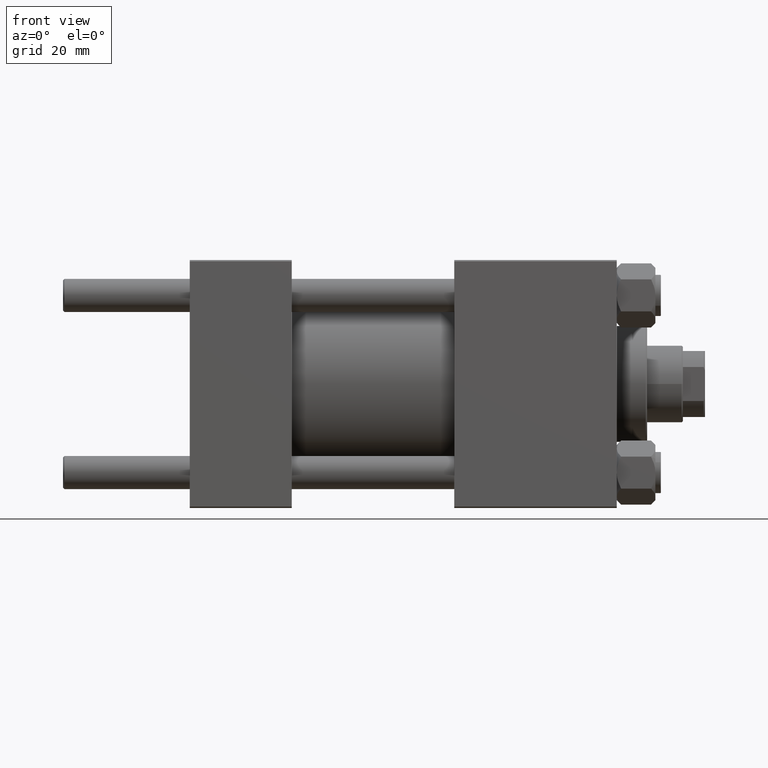
[diagram: clean part render]
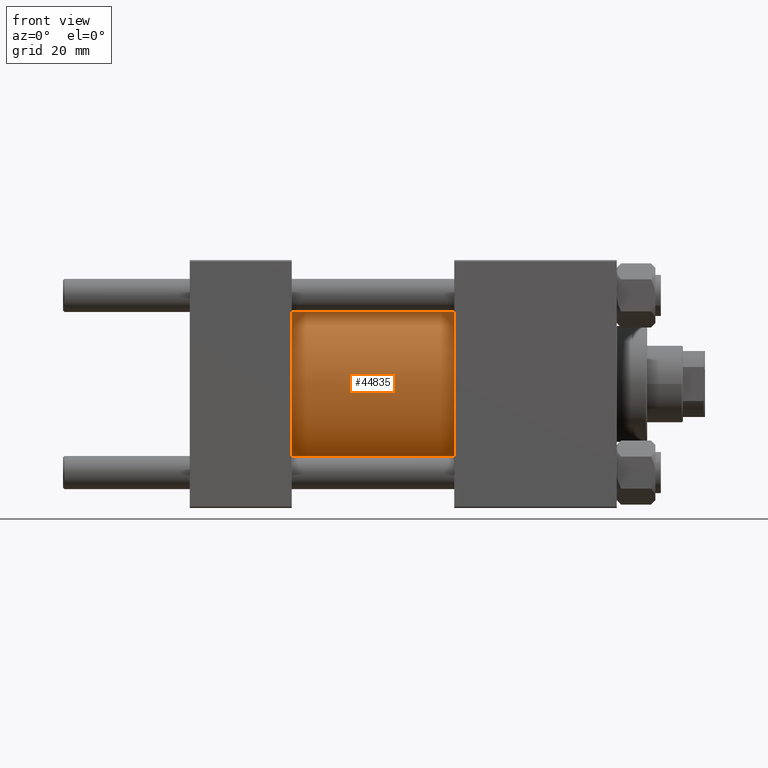
[diagram: same view with one face highlighted and labeled with its STEP entity id]
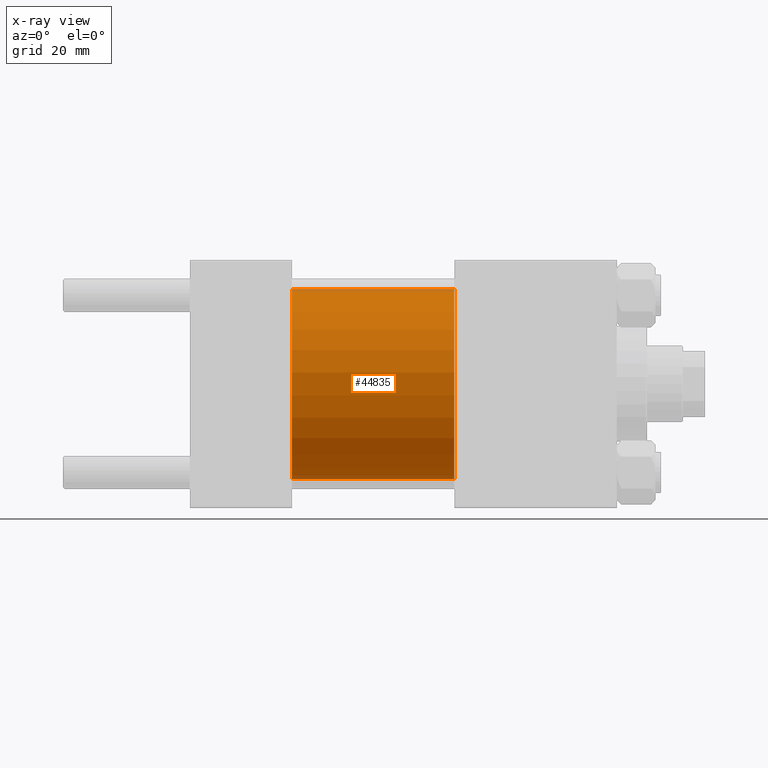
[diagram: x-ray of the same camera — body ghosted, the highlighted face saturated]
A machine part, front view. The second image highlights one B-rep face of the part: STEP entity #44835.
The next image is the same camera in x-ray: the body ghosted, the highlighted face saturated — about 4% of this face is hidden behind the body in this view.
In plain terms, the highlighted cylindrical surface (partial cylindrical patch) has radius 34.5 mm, axis along (-1, -0, -0).
Its self-contained STEP definition (entity closure, byte-faithful):
#2613 = LINE ( 'NONE', #14171, #39856 ) ;
#3122 = CARTESIAN_POINT ( 'NONE',  ( 37.00000000000000000, 0.000000000000000000, 34.49999999999999289 ) ) ;
#4541 = DIRECTION ( 'NONE',  ( 0.000000000000000000, 0.000000000000000000, 1.000000000000000000 ) ) ;
#4726 = CARTESIAN_POINT ( 'NONE',  ( 37.00000000000000000, 4.225031457058367344E-15, -34.49999999999999289 ) ) ;
#5857 = EDGE_CURVE ( 'NONE', #7539, #13664, #2613, .T. ) ;
#7026 = DIRECTION ( 'NONE',  ( 0.000000000000000000, 0.000000000000000000, -1.000000000000000000 ) ) ;
#7539 = VERTEX_POINT ( 'NONE', #48254 ) ;
#10409 = CARTESIAN_POINT ( 'NONE',  ( 96.00000000000000000, 0.000000000000000000, 0.000000000000000000 ) ) ;
#11817 = CARTESIAN_POINT ( 'NONE',  ( 37.00000000000000000, 0.000000000000000000, 0.000000000000000000 ) ) ;
#13664 = VERTEX_POINT ( 'NONE', #4726 ) ;
#14171 = CARTESIAN_POINT ( 'NONE',  ( 96.00000000000000000, 4.225031457058367344E-15, -34.49999999999999289 ) ) ;
#16691 = ORIENTED_EDGE ( 'NONE', *, *, #30549, .F. ) ;
#18318 = VECTOR ( 'NONE', #21103, 1000.000000000000000 ) ;
#21103 = DIRECTION ( 'NONE',  ( -1.000000000000000000, -0.000000000000000000, -0.000000000000000000 ) ) ;
#23674 = AXIS2_PLACEMENT_3D ( 'NONE', #48370, #48614, #7026 ) ;
#23957 = VERTEX_POINT ( 'NONE', #3122 ) ;
#25796 = DIRECTION ( 'NONE',  ( -1.000000000000000000, -0.000000000000000000, -0.000000000000000000 ) ) ;
#26298 = DIRECTION ( 'NONE',  ( 0.000000000000000000, 0.000000000000000000, 1.000000000000000000 ) ) ;
#27926 = CIRCLE ( 'NONE', #35163, 34.49999999999999289 ) ;
#29683 = CARTESIAN_POINT ( 'NONE',  ( 96.00000000000000000, 0.000000000000000000, 34.49999999999999289 ) ) ;
#30549 = EDGE_CURVE ( 'NONE', #32390, #7539, #45412, .T. ) ;
#31009 = DIRECTION ( 'NONE',  ( 1.000000000000000000, -0.000000000000000000, 0.000000000000000000 ) ) ;
#31139 = ORIENTED_EDGE ( 'NONE', *, *, #46295, .T. ) ;
#31978 = CARTESIAN_POINT ( 'NONE',  ( 96.00000000000000000, 0.000000000000000000, 34.49999999999999289 ) ) ;
#32390 = VERTEX_POINT ( 'NONE', #29683 ) ;
#33380 = CYLINDRICAL_SURFACE ( 'NONE', #34492, 34.49999999999999289 ) ;
#33438 = ORIENTED_EDGE ( 'NONE', *, *, #40371, .T. ) ;
#33845 = ORIENTED_EDGE ( 'NONE', *, *, #5857, .F. ) ;
#34492 = AXIS2_PLACEMENT_3D ( 'NONE', #10409, #25796, #26298 ) ;
#35163 = AXIS2_PLACEMENT_3D ( 'NONE', #11817, #31009, #4541 ) ;
#37395 = FACE_OUTER_BOUND ( 'NONE', #41398, .T. ) ;
#39856 = VECTOR ( 'NONE', #44930, 1000.000000000000000 ) ;
#40371 = EDGE_CURVE ( 'NONE', #23957, #13664, #27926, .T. ) ;
#41398 = EDGE_LOOP ( 'NONE', ( #33845, #16691, #31139, #33438 ) ) ;
#43288 = LINE ( 'NONE', #31978, #18318 ) ;
#44835 = ADVANCED_FACE ( 'NONE', ( #37395 ), #33380, .T. ) ;
#44930 = DIRECTION ( 'NONE',  ( -1.000000000000000000, -0.000000000000000000, -0.000000000000000000 ) ) ;
#45412 = CIRCLE ( 'NONE', #23674, 34.49999999999999289 ) ;
#46295 = EDGE_CURVE ( 'NONE', #32390, #23957, #43288, .T. ) ;
#48254 = CARTESIAN_POINT ( 'NONE',  ( 96.00000000000000000, 4.225031457058367344E-15, -34.49999999999999289 ) ) ;
#48370 = CARTESIAN_POINT ( 'NONE',  ( 96.00000000000000000, 0.000000000000000000, 0.000000000000000000 ) ) ;
#48614 = DIRECTION ( 'NONE',  ( 1.000000000000000000, 0.000000000000000000, 0.000000000000000000 ) ) ;